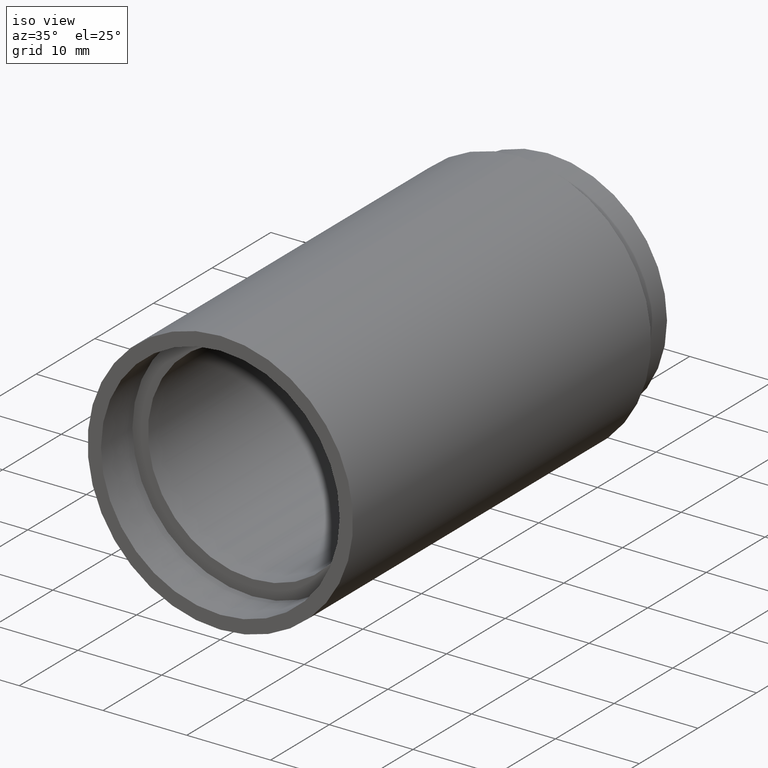
[diagram: clean part render]
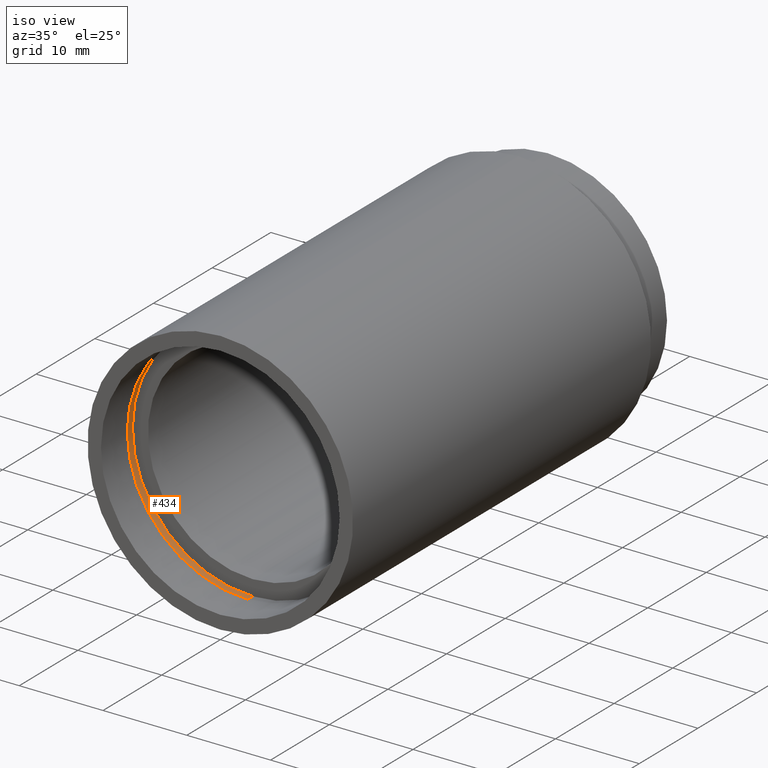
[diagram: same view with one face highlighted and labeled with its STEP entity id]
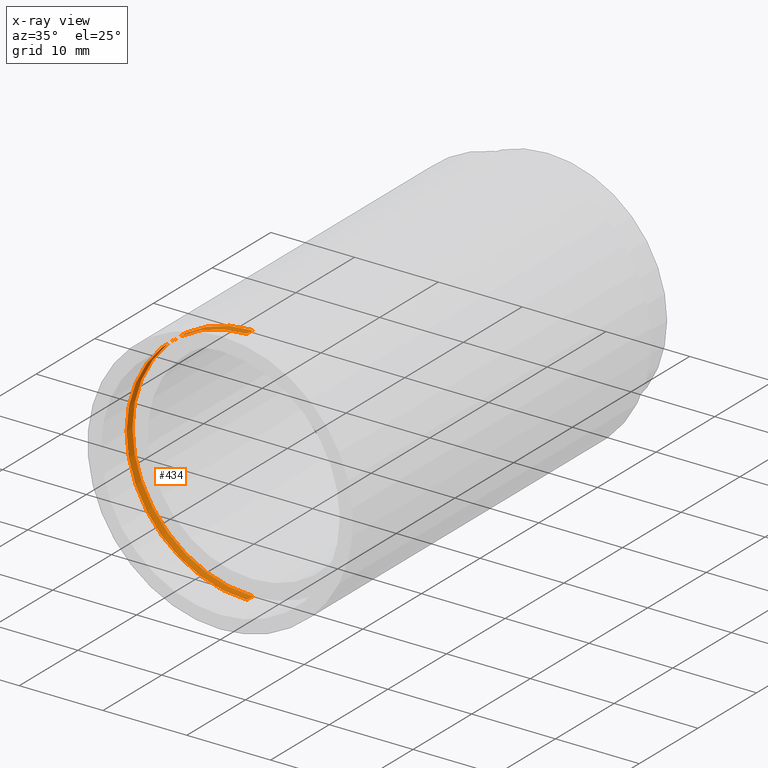
[diagram: x-ray of the same camera — body ghosted, the highlighted face saturated]
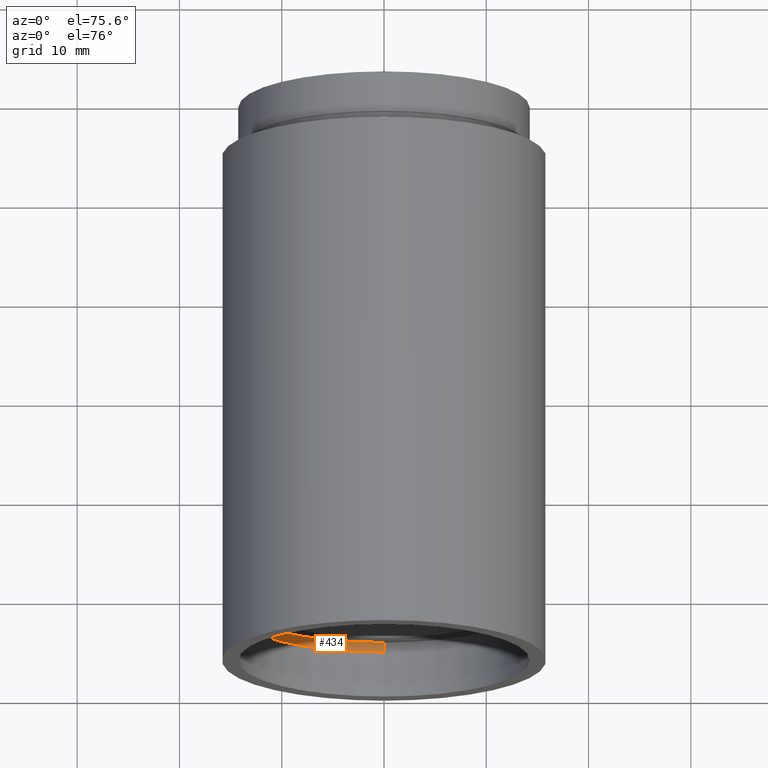
[diagram: same view with one face highlighted and labeled with its STEP entity id]
A machine part, iso view. The second image highlights one B-rep face of the part: STEP entity #434.
The next image is the same camera in x-ray: the body ghosted, the highlighted face saturated — about 0% of this face is hidden behind the body in this view.
A second angle (auxiliary view) of the same face is appended — the face is thin or edge-on in the first view.
In plain terms, the highlighted cylindrical surface (partial cylindrical patch) has radius 14.35 mm, axis along (-0, 1, -0).
Its self-contained STEP definition (entity closure, byte-faithful):
#1 = ORIENTED_EDGE ( 'NONE', *, *, #215, .F. ) ;
#11 = VECTOR ( 'NONE', #196, 1000.000000000000000 ) ;
#45 = DIRECTION ( 'NONE',  ( -0.0000000000000000000, 1.000000000000000000, -0.0000000000000000000 ) ) ;
#72 = EDGE_CURVE ( 'NONE', #266, #425, #298, .T. ) ;
#90 = DIRECTION ( 'NONE',  ( -0.0000000000000000000, 1.000000000000000000, -0.0000000000000000000 ) ) ;
#98 = CARTESIAN_POINT ( 'NONE',  ( 0.0000000000000000000, 161.3761669434274500, 14.35000000000001900 ) ) ;
#142 = CARTESIAN_POINT ( 'NONE',  ( 1.757368156776454300E-015, 5.499999999999976900, -14.35000000000001900 ) ) ;
#146 = CYLINDRICAL_SURFACE ( 'NONE', #509, 14.35000000000001900 ) ;
#172 = EDGE_CURVE ( 'NONE', #425, #526, #269, .T. ) ;
#173 = ORIENTED_EDGE ( 'NONE', *, *, #72, .T. ) ;
#196 = DIRECTION ( 'NONE',  ( -0.0000000000000000000, 1.000000000000000000, -0.0000000000000000000 ) ) ;
#201 = CARTESIAN_POINT ( 'NONE',  ( 0.0000000000000000000, 161.3761669434274500, 0.0000000000000000000 ) ) ;
#209 = CARTESIAN_POINT ( 'NONE',  ( 0.0000000000000000000, 5.499999999999976900, 14.35000000000001900 ) ) ;
#215 = EDGE_CURVE ( 'NONE', #248, #526, #361, .T. ) ;
#248 = VERTEX_POINT ( 'NONE', #393 ) ;
#250 = ORIENTED_EDGE ( 'NONE', *, *, #462, .F. ) ;
#266 = VERTEX_POINT ( 'NONE', #274 ) ;
#269 = CIRCLE ( 'NONE', #547, 14.35000000000001900 ) ;
#274 = CARTESIAN_POINT ( 'NONE',  ( 1.757368156776454300E-015, 4.499999999999976000, -14.35000000000001900 ) ) ;
#277 = FACE_OUTER_BOUND ( 'NONE', #518, .T. ) ;
#290 = DIRECTION ( 'NONE',  ( -0.0000000000000000000, 1.000000000000000000, -0.0000000000000000000 ) ) ;
#298 = LINE ( 'NONE', #480, #502 ) ;
#343 = DIRECTION ( 'NONE',  ( 0.0000000000000000000, 0.0000000000000000000, 1.000000000000000000 ) ) ;
#361 = LINE ( 'NONE', #98, #11 ) ;
#385 = AXIS2_PLACEMENT_3D ( 'NONE', #533, #290, #343 ) ;
#393 = CARTESIAN_POINT ( 'NONE',  ( 0.0000000000000000000, 4.499999999999976000, 14.35000000000001900 ) ) ;
#425 = VERTEX_POINT ( 'NONE', #142 ) ;
#434 = ADVANCED_FACE ( 'NONE', ( #277 ), #146, .F. ) ;
#436 = ORIENTED_EDGE ( 'NONE', *, *, #172, .T. ) ;
#440 = DIRECTION ( 'NONE',  ( 0.0000000000000000000, 0.0000000000000000000, 1.000000000000000000 ) ) ;
#462 = EDGE_CURVE ( 'NONE', #266, #248, #523, .T. ) ;
#480 = CARTESIAN_POINT ( 'NONE',  ( 1.757368156776454300E-015, 161.3761669434274500, -14.35000000000001900 ) ) ;
#502 = VECTOR ( 'NONE', #90, 1000.000000000000000 ) ;
#509 = AXIS2_PLACEMENT_3D ( 'NONE', #201, #538, #440 ) ;
#518 = EDGE_LOOP ( 'NONE', ( #250, #173, #436, #1 ) ) ;
#523 = CIRCLE ( 'NONE', #385, 14.35000000000001900 ) ;
#526 = VERTEX_POINT ( 'NONE', #209 ) ;
#531 = DIRECTION ( 'NONE',  ( 0.0000000000000000000, 0.0000000000000000000, 1.000000000000000000 ) ) ;
#533 = CARTESIAN_POINT ( 'NONE',  ( 0.0000000000000000000, 4.499999999999976000, 0.0000000000000000000 ) ) ;
#538 = DIRECTION ( 'NONE',  ( -0.0000000000000000000, 1.000000000000000000, -0.0000000000000000000 ) ) ;
#547 = AXIS2_PLACEMENT_3D ( 'NONE', #611, #45, #531 ) ;
#611 = CARTESIAN_POINT ( 'NONE',  ( 0.0000000000000000000, 5.499999999999976900, 0.0000000000000000000 ) ) ;